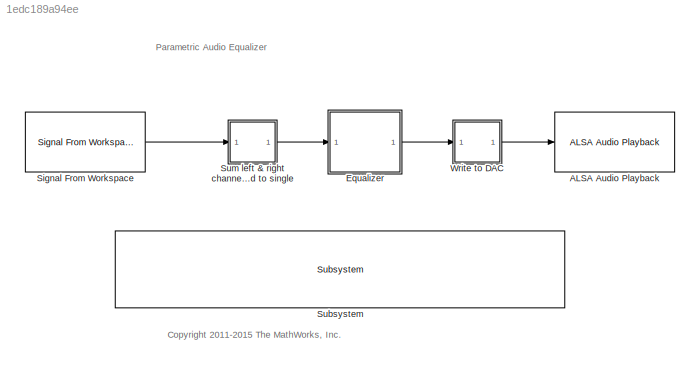
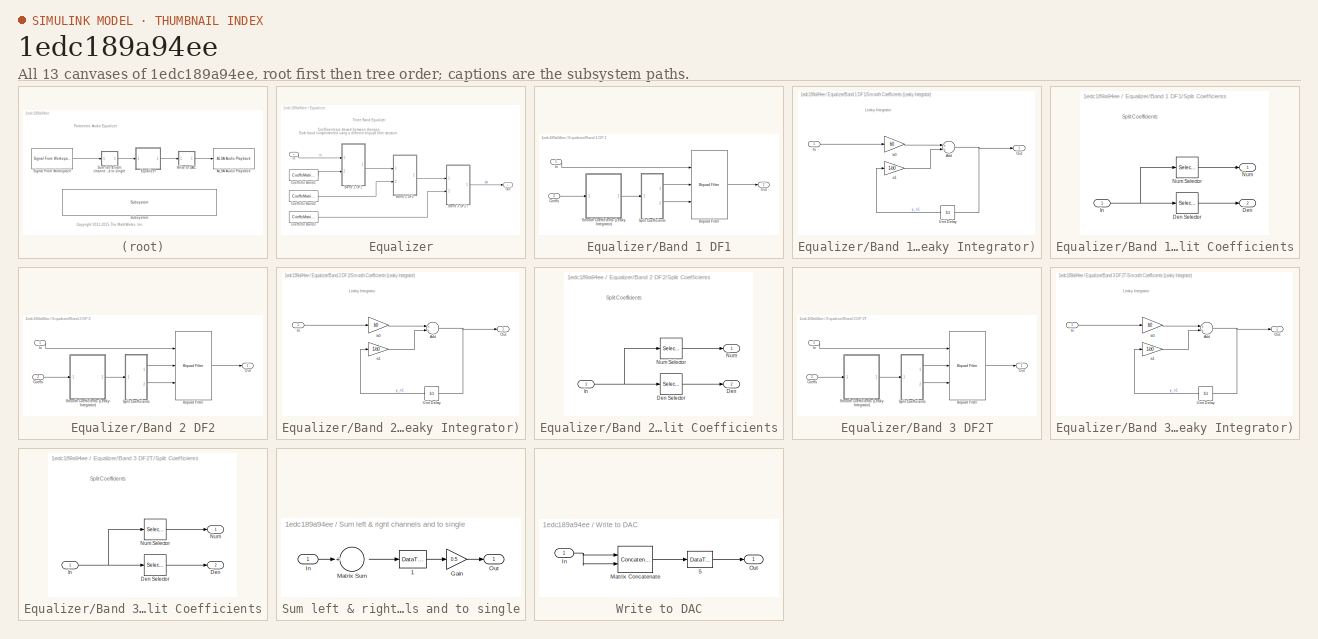
[diagram: thumbnail index - all 13 canvases of the model, root first then tree order]
MODEL slx_1edc189a94ee
KIND model
CONFIG AbsTol = auto
CONFIG EnableMultiTasking = off
CONFIG FixedStep = auto
CONFIG InitFcn = audio_equalizer_data\naudioSignal = audioread(fullfile(matlabroot,'toolbox','signal','signal','guitartune.wav'));\naudioSignal = int16((2^15-1)*audioSignal);\n\n\n
CONFIG MaxStep = auto
CONFIG MinStep = auto
CONFIG RelTol = 1e-3
CONFIG SampleTimeConstraint = Unconstrained
CONFIG Solver = FixedStepDiscrete
CONFIG SolverName = FixedStepDiscrete
CONFIG StartFcn = audio_equalizer_gui
CONFIG StartTime = 0.0
CONFIG StopTime = inf
BLOCK [Reference] ALSA Audio Playback  REF=embdlinuxlib/ALSA Audio Playback
  Ports = [1]
  SourceBlock = embdlinuxlib/ALSA Audio Playback
  SourceProductBaseCode = RASPPI
  SourceProductName = Simulink Support Package for Raspberry Pi Hardware
  SourceType = codertarget.linux.blocks.ALSAAudioPlayback
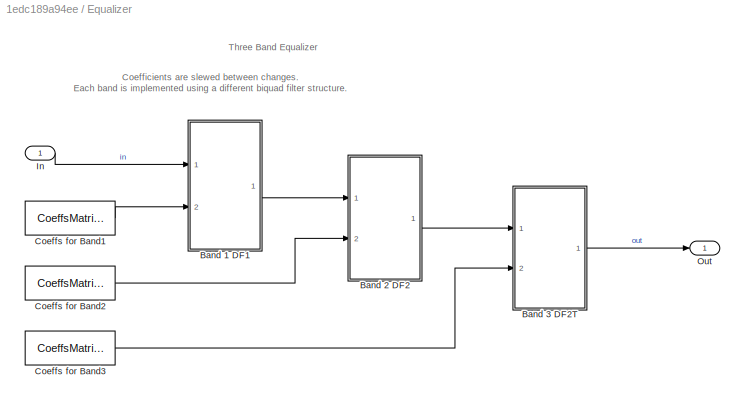
BLOCK [SubSystem] Equalizer
  Ports = [1, 1]
  RequestExecContextInheritance = off
  TreatAsAtomicUnit = on
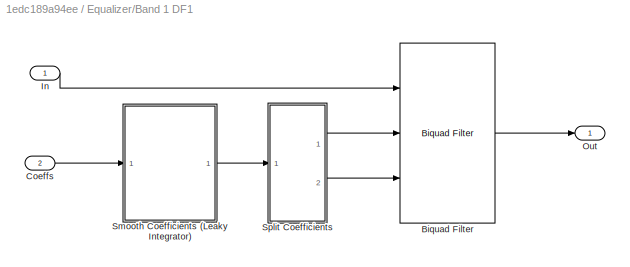
BLOCK [SubSystem] Equalizer/Band 1 DF1
  Ports = [2, 1]
  RTWSystemCode = Nonreusable function
  RequestExecContextInheritance = off
  TreatAsAtomicUnit = on
BLOCK [Reference] Equalizer/Band 1 DF1/Biquad Filter  REF=dsparch4/Biquad Filter
  AttributesFormatString = --------------------------------------\n%<IIRFiltStruct>
  Ports = [3, 1]
  SourceBlock = dsparch4/Biquad Filter
  SourceProductBaseCode = DS
  SourceProductName = DSP System Toolbox
  SourceType = Biquad Filter
  UserDataPersistent = on
BLOCK [Inport] Equalizer/Band 1 DF1/Coeffs
  IconDisplay = Port number
  Port = 2
BLOCK [Inport] Equalizer/Band 1 DF1/In
  IconDisplay = Port number
BLOCK [Outport] Equalizer/Band 1 DF1/Out
  IconDisplay = Port number
BLOCK [SubSystem] Equalizer/Band 1 DF1/Smooth Coefficients (Leaky Integrator)
  Ports = [1, 1]
  RTWFcnName = LeakyIntegrator
  RequestExecContextInheritance = off
BLOCK [Sum] Equalizer/Band 1 DF1/Smooth Coefficients (Leaky Integrator)/Add
  AccumDataTypeStr = Inherit: Same as first input
  InputSameDT = off
  OutDataTypeStr = Inherit: Inherit via back propagation
  Ports = [2, 1]
  SaturateOnIntegerOverflow = off
BLOCK [Inport] Equalizer/Band 1 DF1/Smooth Coefficients (Leaky Integrator)/In
  IconDisplay = Port number
BLOCK [Outport] Equalizer/Band 1 DF1/Smooth Coefficients (Leaky Integrator)/Out
  IconDisplay = Port number
BLOCK [UnitDelay] Equalizer/Band 1 DF1/Smooth Coefficients (Leaky Integrator)/Unit Delay
  InitialCondition = init_state
  SampleTime = -1
BLOCK [Gain] Equalizer/Band 1 DF1/Smooth Coefficients (Leaky Integrator)/a1
  Gain = 1-b0
  SaturateOnIntegerOverflow = off
BLOCK [Gain] Equalizer/Band 1 DF1/Smooth Coefficients (Leaky Integrator)/b0
  Gain = b0
  SaturateOnIntegerOverflow = off
BLOCK [SubSystem] Equalizer/Band 1 DF1/Split Coefficients
  Ports = [1, 2]
  RequestExecContextInheritance = off
BLOCK [Outport] Equalizer/Band 1 DF1/Split Coefficients/Den
  IconDisplay = Port number
  Port = 2
BLOCK [Selector] Equalizer/Band 1 DF1/Split Coefficients/Den Selector
  IndexOptions = Index vector (dialog)
  Indices = [4 5]
  InputPortWidth = 5
  OutputSizes = 1
  Ports = [1, 1]
BLOCK [Inport] Equalizer/Band 1 DF1/Split Coefficients/In
  IconDisplay = Port number
BLOCK [Outport] Equalizer/Band 1 DF1/Split Coefficients/Num
  IconDisplay = Port number
BLOCK [Selector] Equalizer/Band 1 DF1/Split Coefficients/Num Selector
  IndexOptions = Index vector (dialog)
  Indices = [1 2 3]
  InputPortWidth = 5
  OutputSizes = 1
  Ports = [1, 1]
BLOCK [SubSystem] Equalizer/Band 2 DF2
  Ports = [2, 1]
  RTWSystemCode = Nonreusable function
  RequestExecContextInheritance = off
  TreatAsAtomicUnit = on
BLOCK [Reference] Equalizer/Band 2 DF2/Biquad Filter  REF=dsparch4/Biquad Filter
  AttributesFormatString = --------------------------------------\n%<IIRFiltStruct>
  Ports = [3, 1]
  SourceBlock = dsparch4/Biquad Filter
  SourceProductBaseCode = DS
  SourceProductName = DSP System Toolbox
  SourceType = Biquad Filter
  UserDataPersistent = on
BLOCK [Inport] Equalizer/Band 2 DF2/Coeffs
  IconDisplay = Port number
  Port = 2
BLOCK [Inport] Equalizer/Band 2 DF2/In
  IconDisplay = Port number
BLOCK [Outport] Equalizer/Band 2 DF2/Out
  IconDisplay = Port number
BLOCK [SubSystem] Equalizer/Band 2 DF2/Smooth Coefficients (Leaky Integrator)
  Ports = [1, 1]
  RTWFcnName = LeakyIntegrator
  RequestExecContextInheritance = off
BLOCK [Sum] Equalizer/Band 2 DF2/Smooth Coefficients (Leaky Integrator)/Add
  AccumDataTypeStr = Inherit: Same as first input
  InputSameDT = off
  OutDataTypeStr = Inherit: Inherit via back propagation
  Ports = [2, 1]
  SaturateOnIntegerOverflow = off
BLOCK [Inport] Equalizer/Band 2 DF2/Smooth Coefficients (Leaky Integrator)/In
  IconDisplay = Port number
BLOCK [Outport] Equalizer/Band 2 DF2/Smooth Coefficients (Leaky Integrator)/Out
  IconDisplay = Port number
BLOCK [UnitDelay] Equalizer/Band 2 DF2/Smooth Coefficients (Leaky Integrator)/Unit Delay
  InitialCondition = init_state
  SampleTime = -1
BLOCK [Gain] Equalizer/Band 2 DF2/Smooth Coefficients (Leaky Integrator)/a1
  Gain = 1-b0
  SaturateOnIntegerOverflow = off
BLOCK [Gain] Equalizer/Band 2 DF2/Smooth Coefficients (Leaky Integrator)/b0
  Gain = b0
  SaturateOnIntegerOverflow = off
BLOCK [SubSystem] Equalizer/Band 2 DF2/Split Coefficients
  Ports = [1, 2]
  RequestExecContextInheritance = off
BLOCK [Outport] Equalizer/Band 2 DF2/Split Coefficients/Den
  IconDisplay = Port number
  Port = 2
BLOCK [Selector] Equalizer/Band 2 DF2/Split Coefficients/Den Selector
  IndexOptions = Index vector (dialog)
  Indices = [4 5]
  InputPortWidth = 5
  OutputSizes = 1
  Ports = [1, 1]
BLOCK [Inport] Equalizer/Band 2 DF2/Split Coefficients/In
  IconDisplay = Port number
BLOCK [Outport] Equalizer/Band 2 DF2/Split Coefficients/Num
  IconDisplay = Port number
BLOCK [Selector] Equalizer/Band 2 DF2/Split Coefficients/Num Selector
  IndexOptions = Index vector (dialog)
  Indices = [1 2 3]
  InputPortWidth = 5
  OutputSizes = 1
  Ports = [1, 1]
BLOCK [SubSystem] Equalizer/Band 3 DF2T
  Ports = [2, 1]
  RTWSystemCode = Nonreusable function
  RequestExecContextInheritance = off
  TreatAsAtomicUnit = on
BLOCK [Reference] Equalizer/Band 3 DF2T/Biquad Filter  REF=dsparch4/Biquad Filter
  AttributesFormatString = --------------------------------------\n%<IIRFiltStruct>
  Ports = [3, 1]
  SourceBlock = dsparch4/Biquad Filter
  SourceProductBaseCode = DS
  SourceProductName = DSP System Toolbox
  SourceType = Biquad Filter
  UserDataPersistent = on
BLOCK [Inport] Equalizer/Band 3 DF2T/Coeffs
  IconDisplay = Port number
  Port = 2
BLOCK [Inport] Equalizer/Band 3 DF2T/In
  IconDisplay = Port number
BLOCK [Outport] Equalizer/Band 3 DF2T/Out
  IconDisplay = Port number
BLOCK [SubSystem] Equalizer/Band 3 DF2T/Smooth Coefficients (Leaky Integrator)
  Ports = [1, 1]
  RTWFcnName = LeakyIntegrator
  RequestExecContextInheritance = off
BLOCK [Sum] Equalizer/Band 3 DF2T/Smooth Coefficients (Leaky Integrator)/Add
  AccumDataTypeStr = Inherit: Same as first input
  InputSameDT = off
  OutDataTypeStr = Inherit: Inherit via back propagation
  Ports = [2, 1]
  SaturateOnIntegerOverflow = off
BLOCK [Inport] Equalizer/Band 3 DF2T/Smooth Coefficients (Leaky Integrator)/In
  IconDisplay = Port number
BLOCK [Outport] Equalizer/Band 3 DF2T/Smooth Coefficients (Leaky Integrator)/Out
  IconDisplay = Port number
BLOCK [UnitDelay] Equalizer/Band 3 DF2T/Smooth Coefficients (Leaky Integrator)/Unit Delay
  InitialCondition = init_state
  SampleTime = -1
BLOCK [Gain] Equalizer/Band 3 DF2T/Smooth Coefficients (Leaky Integrator)/a1
  Gain = 1-b0
  SaturateOnIntegerOverflow = off
BLOCK [Gain] Equalizer/Band 3 DF2T/Smooth Coefficients (Leaky Integrator)/b0
  Gain = b0
  SaturateOnIntegerOverflow = off
BLOCK [SubSystem] Equalizer/Band 3 DF2T/Split Coefficients
  Ports = [1, 2]
  RequestExecContextInheritance = off
BLOCK [Outport] Equalizer/Band 3 DF2T/Split Coefficients/Den
  IconDisplay = Port number
  Port = 2
BLOCK [Selector] Equalizer/Band 3 DF2T/Split Coefficients/Den Selector
  IndexOptions = Index vector (dialog)
  Indices = [4 5]
  InputPortWidth = 5
  OutputSizes = 1
  Ports = [1, 1]
BLOCK [Inport] Equalizer/Band 3 DF2T/Split Coefficients/In
  IconDisplay = Port number
BLOCK [Outport] Equalizer/Band 3 DF2T/Split Coefficients/Num
  IconDisplay = Port number
BLOCK [Selector] Equalizer/Band 3 DF2T/Split Coefficients/Num Selector
  IndexOptions = Index vector (dialog)
  Indices = [1 2 3]
  InputPortWidth = 5
  OutputSizes = 1
  Ports = [1, 1]
BLOCK [Constant] Equalizer/Coeffs for Band1
  OutDataTypeStr = single
  Value = CoeffsMatrix1
  VectorParams1D = off
BLOCK [Constant] Equalizer/Coeffs for Band2
  OutDataTypeStr = single
  Value = CoeffsMatrix2
  VectorParams1D = off
BLOCK [Constant] Equalizer/Coeffs for Band3
  OutDataTypeStr = single
  Value = CoeffsMatrix3
  VectorParams1D = off
BLOCK [Inport] Equalizer/In
  IconDisplay = Port number
BLOCK [Outport] Equalizer/Out
  IconDisplay = Port number
BLOCK [Reference] Signal From Workspace  REF=dspsrcs4/Signal From
Workspace
  Ports = [0, 1]
  SourceBlock = dspsrcs4/Signal From\nWorkspace
  SourceProductBaseCode = DS
  SourceProductName = DSP System Toolbox
  SourceType = Signal From Workspace
BLOCK [Reference] Subsystem  REF=realtime_examples_misc/Subsystem
  Ports = []
  SourceBlock = realtime_examples_misc/Subsystem
BLOCK [SubSystem] Sum left & right channels and to single
  Ports = [1, 1]
  RequestExecContextInheritance = off
BLOCK [DataTypeConversion] Sum left & right channels and to single/ 1
  OutDataTypeStr = single
  RndMeth = Floor
  SaturateOnIntegerOverflow = off
BLOCK [Gain] Sum left & right channels and to single/Gain
  Gain = 0.5
  OutDataTypeStr = Inherit: Inherit via internal rule
  ParamDataTypeStr = Inherit: Inherit via internal rule
  SaturateOnIntegerOverflow = off
BLOCK [Inport] Sum left & right channels and to single/In
  IconDisplay = Port number
BLOCK [Sum] Sum left & right channels and to single/Matrix Sum
  CollapseDim = 2
  CollapseMode = Specified dimension
  InputSameDT = off
  Inputs = +
  OutDataTypeStr = Inherit: Inherit via internal rule
  Ports = [1, 1]
  SaturateOnIntegerOverflow = off
BLOCK [Outport] Sum left & right channels and to single/Out
  IconDisplay = Port number
BLOCK [SubSystem] Write to DAC
  Ports = [1, 1]
  RequestExecContextInheritance = off
BLOCK [DataTypeConversion] Write to DAC/ 5
  OutDataTypeStr = int16
  RndMeth = Floor
  SaturateOnIntegerOverflow = off
BLOCK [Inport] Write to DAC/In
  IconDisplay = Port number
BLOCK [Concatenate] Write to DAC/Matrix Concatenate
  ConcatenateDimension = 2
  Mode = Multidimensional array
  Ports = [2, 1]
BLOCK [Outport] Write to DAC/Out
  IconDisplay = Port number
ANNOTATION (root): <copyright redacted>
ANNOTATION (root): Parametric Audio Equalizer
ANNOTATION Equalizer: Coefficients are slewed between changes. Each band is implemented using a different biquad filter structure.
ANNOTATION Equalizer: Three Band Equalizer
ANNOTATION Equalizer/Band 1 DF1/Smooth Coefficients (Leaky Integrator): Leaky Integrator
ANNOTATION Equalizer/Band 1 DF1/Split Coefficients: Split Coefficients
ANNOTATION Equalizer/Band 2 DF2/Smooth Coefficients (Leaky Integrator): Leaky Integrator
ANNOTATION Equalizer/Band 2 DF2/Split Coefficients: Split Coefficients
ANNOTATION Equalizer/Band 3 DF2T/Smooth Coefficients (Leaky Integrator): Leaky Integrator
ANNOTATION Equalizer/Band 3 DF2T/Split Coefficients: Split Coefficients
LINE Equalizer/Band 1 DF1/Biquad Filter:1 -> Equalizer/Band 1 DF1/Out:1
LINE Equalizer/Band 1 DF1/Coeffs:1 -> Equalizer/Band 1 DF1/Smooth Coefficients (Leaky Integrator):1
LINE Equalizer/Band 1 DF1/In:1 -> Equalizer/Band 1 DF1/Biquad Filter:1
NET Equalizer/Band 1 DF1/Smooth Coefficients (Leaky Integrator)/Add:1 -> Equalizer/Band 1 DF1/Smooth Coefficients (Leaky Integrator)/Out:1, Equalizer/Band 1 DF1/Smooth Coefficients (Leaky Integrator)/Unit Delay:1
LINE Equalizer/Band 1 DF1/Smooth Coefficients (Leaky Integrator)/In:1 -> Equalizer/Band 1 DF1/Smooth Coefficients (Leaky Integrator)/b0:1
LINE Equalizer/Band 1 DF1/Smooth Coefficients (Leaky Integrator)/Unit Delay:1 -> Equalizer/Band 1 DF1/Smooth Coefficients (Leaky Integrator)/a1:1
LINE Equalizer/Band 1 DF1/Smooth Coefficients (Leaky Integrator)/a1:1 -> Equalizer/Band 1 DF1/Smooth Coefficients (Leaky Integrator)/Add:2
LINE Equalizer/Band 1 DF1/Smooth Coefficients (Leaky Integrator)/b0:1 -> Equalizer/Band 1 DF1/Smooth Coefficients (Leaky Integrator)/Add:1
LINE Equalizer/Band 1 DF1/Smooth Coefficients (Leaky Integrator):1 -> Equalizer/Band 1 DF1/Split Coefficients:1
LINE Equalizer/Band 1 DF1/Split Coefficients/Den Selector:1 -> Equalizer/Band 1 DF1/Split Coefficients/Den:1
NET Equalizer/Band 1 DF1/Split Coefficients/In:1 -> Equalizer/Band 1 DF1/Split Coefficients/Den Selector:1, Equalizer/Band 1 DF1/Split Coefficients/Num Selector:1
LINE Equalizer/Band 1 DF1/Split Coefficients/Num Selector:1 -> Equalizer/Band 1 DF1/Split Coefficients/Num:1
LINE Equalizer/Band 1 DF1/Split Coefficients:1 -> Equalizer/Band 1 DF1/Biquad Filter:2
LINE Equalizer/Band 1 DF1/Split Coefficients:2 -> Equalizer/Band 1 DF1/Biquad Filter:3
LINE Equalizer/Band 1 DF1:1 -> Equalizer/Band 2 DF2:1
LINE Equalizer/Band 2 DF2/Biquad Filter:1 -> Equalizer/Band 2 DF2/Out:1
LINE Equalizer/Band 2 DF2/Coeffs:1 -> Equalizer/Band 2 DF2/Smooth Coefficients (Leaky Integrator):1
LINE Equalizer/Band 2 DF2/In:1 -> Equalizer/Band 2 DF2/Biquad Filter:1
NET Equalizer/Band 2 DF2/Smooth Coefficients (Leaky Integrator)/Add:1 -> Equalizer/Band 2 DF2/Smooth Coefficients (Leaky Integrator)/Out:1, Equalizer/Band 2 DF2/Smooth Coefficients (Leaky Integrator)/Unit Delay:1
LINE Equalizer/Band 2 DF2/Smooth Coefficients (Leaky Integrator)/In:1 -> Equalizer/Band 2 DF2/Smooth Coefficients (Leaky Integrator)/b0:1
LINE Equalizer/Band 2 DF2/Smooth Coefficients (Leaky Integrator)/Unit Delay:1 -> Equalizer/Band 2 DF2/Smooth Coefficients (Leaky Integrator)/a1:1
LINE Equalizer/Band 2 DF2/Smooth Coefficients (Leaky Integrator)/a1:1 -> Equalizer/Band 2 DF2/Smooth Coefficients (Leaky Integrator)/Add:2
LINE Equalizer/Band 2 DF2/Smooth Coefficients (Leaky Integrator)/b0:1 -> Equalizer/Band 2 DF2/Smooth Coefficients (Leaky Integrator)/Add:1
LINE Equalizer/Band 2 DF2/Smooth Coefficients (Leaky Integrator):1 -> Equalizer/Band 2 DF2/Split Coefficients:1
LINE Equalizer/Band 2 DF2/Split Coefficients/Den Selector:1 -> Equalizer/Band 2 DF2/Split Coefficients/Den:1
NET Equalizer/Band 2 DF2/Split Coefficients/In:1 -> Equalizer/Band 2 DF2/Split Coefficients/Den Selector:1, Equalizer/Band 2 DF2/Split Coefficients/Num Selector:1
LINE Equalizer/Band 2 DF2/Split Coefficients/Num Selector:1 -> Equalizer/Band 2 DF2/Split Coefficients/Num:1
LINE Equalizer/Band 2 DF2/Split Coefficients:1 -> Equalizer/Band 2 DF2/Biquad Filter:2
LINE Equalizer/Band 2 DF2/Split Coefficients:2 -> Equalizer/Band 2 DF2/Biquad Filter:3
LINE Equalizer/Band 2 DF2:1 -> Equalizer/Band 3 DF2T:1
LINE Equalizer/Band 3 DF2T/Biquad Filter:1 -> Equalizer/Band 3 DF2T/Out:1
LINE Equalizer/Band 3 DF2T/Coeffs:1 -> Equalizer/Band 3 DF2T/Smooth Coefficients (Leaky Integrator):1
LINE Equalizer/Band 3 DF2T/In:1 -> Equalizer/Band 3 DF2T/Biquad Filter:1
NET Equalizer/Band 3 DF2T/Smooth Coefficients (Leaky Integrator)/Add:1 -> Equalizer/Band 3 DF2T/Smooth Coefficients (Leaky Integrator)/Out:1, Equalizer/Band 3 DF2T/Smooth Coefficients (Leaky Integrator)/Unit Delay:1
LINE Equalizer/Band 3 DF2T/Smooth Coefficients (Leaky Integrator)/In:1 -> Equalizer/Band 3 DF2T/Smooth Coefficients (Leaky Integrator)/b0:1
LINE Equalizer/Band 3 DF2T/Smooth Coefficients (Leaky Integrator)/Unit Delay:1 -> Equalizer/Band 3 DF2T/Smooth Coefficients (Leaky Integrator)/a1:1
LINE Equalizer/Band 3 DF2T/Smooth Coefficients (Leaky Integrator)/a1:1 -> Equalizer/Band 3 DF2T/Smooth Coefficients (Leaky Integrator)/Add:2
LINE Equalizer/Band 3 DF2T/Smooth Coefficients (Leaky Integrator)/b0:1 -> Equalizer/Band 3 DF2T/Smooth Coefficients (Leaky Integrator)/Add:1
LINE Equalizer/Band 3 DF2T/Smooth Coefficients (Leaky Integrator):1 -> Equalizer/Band 3 DF2T/Split Coefficients:1
LINE Equalizer/Band 3 DF2T/Split Coefficients/Den Selector:1 -> Equalizer/Band 3 DF2T/Split Coefficients/Den:1
NET Equalizer/Band 3 DF2T/Split Coefficients/In:1 -> Equalizer/Band 3 DF2T/Split Coefficients/Den Selector:1, Equalizer/Band 3 DF2T/Split Coefficients/Num Selector:1
LINE Equalizer/Band 3 DF2T/Split Coefficients/Num Selector:1 -> Equalizer/Band 3 DF2T/Split Coefficients/Num:1
LINE Equalizer/Band 3 DF2T/Split Coefficients:1 -> Equalizer/Band 3 DF2T/Biquad Filter:2
LINE Equalizer/Band 3 DF2T/Split Coefficients:2 -> Equalizer/Band 3 DF2T/Biquad Filter:3
LINE Equalizer/Band 3 DF2T:1 -> Equalizer/Out:1
LINE Equalizer/Coeffs for Band1:1 -> Equalizer/Band 1 DF1:2
LINE Equalizer/Coeffs for Band2:1 -> Equalizer/Band 2 DF2:2
LINE Equalizer/Coeffs for Band3:1 -> Equalizer/Band 3 DF2T:2
LINE Equalizer/In:1 -> Equalizer/Band 1 DF1:1
LINE Equalizer:1 -> Write to DAC:1
LINE Signal From Workspace:1 -> Sum left & right channels and to single:1
LINE Sum left & right channels and to single/ 1:1 -> Sum left & right channels and to single/Gain:1
LINE Sum left & right channels and to single/Gain:1 -> Sum left & right channels and to single/Out:1
LINE Sum left & right channels and to single/In:1 -> Sum left & right channels and to single/Matrix Sum:1
LINE Sum left & right channels and to single/Matrix Sum:1 -> Sum left & right channels and to single/ 1:1
LINE Sum left & right channels and to single:1 -> Equalizer:1
LINE Write to DAC/ 5:1 -> Write to DAC/Out:1
NET Write to DAC/In:1 -> Write to DAC/Matrix Concatenate:1, Write to DAC/Matrix Concatenate:2
LINE Write to DAC/Matrix Concatenate:1 -> Write to DAC/ 5:1
LINE Write to DAC:1 -> ALSA Audio Playback:1
note: NET lines group one-source signal fan-out (src -> all destinations, sorted); 1:1 wires keep LINE
